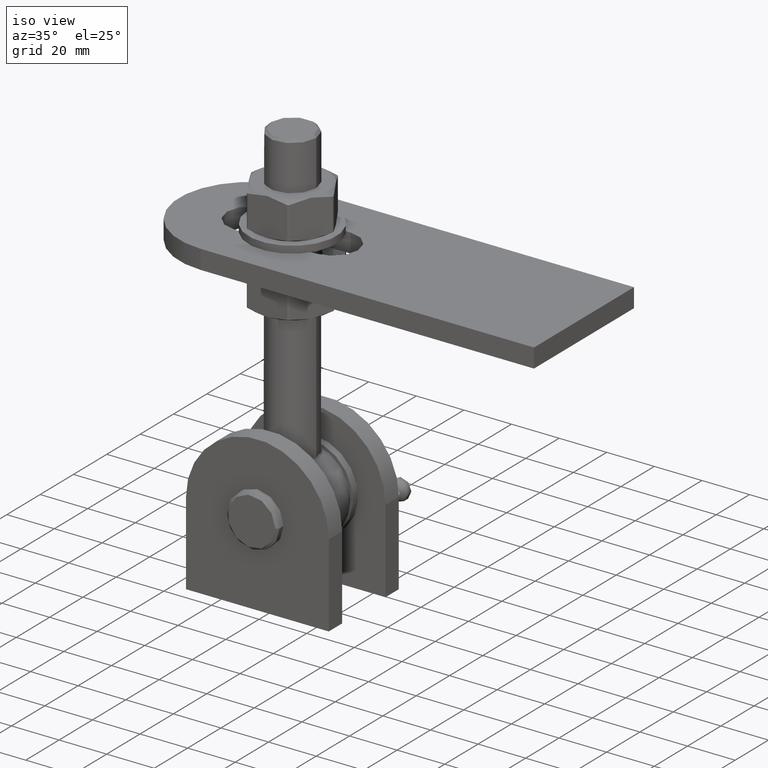
[diagram: clean part render]
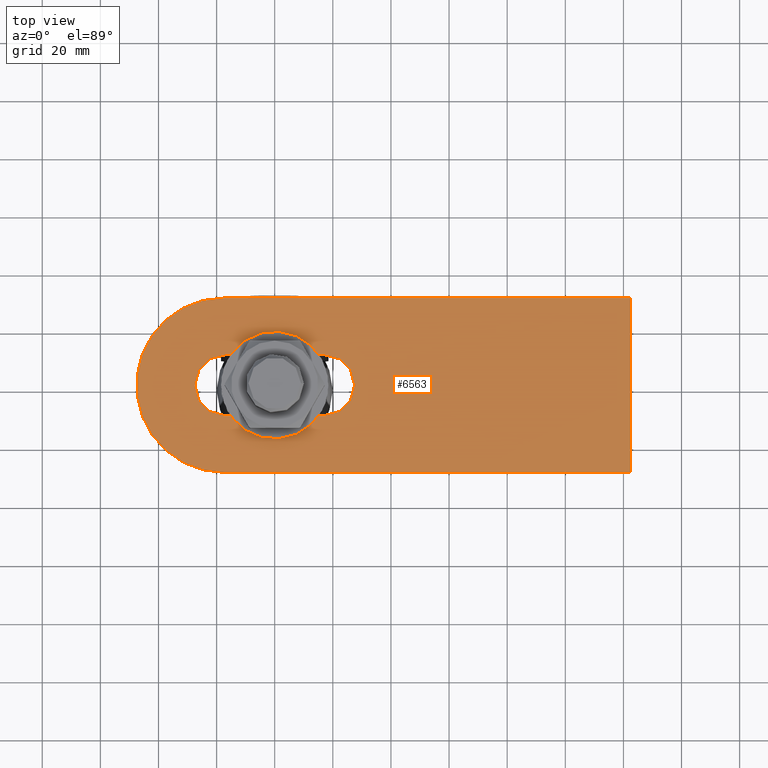
[diagram: tour spotlight — one face highlighted and labeled with its STEP entity id]
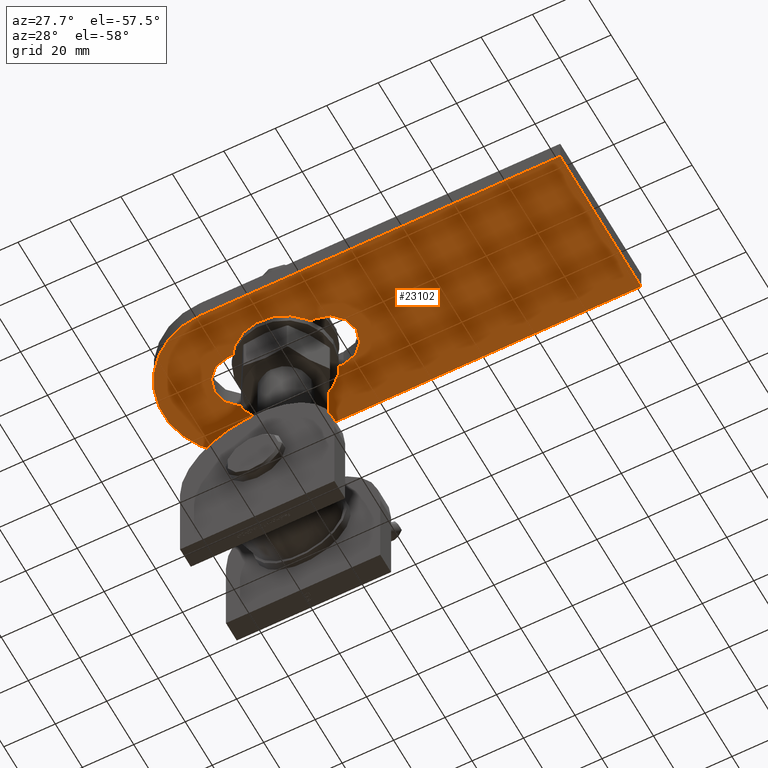
[diagram: tour spotlight — one face highlighted and labeled with its STEP entity id]
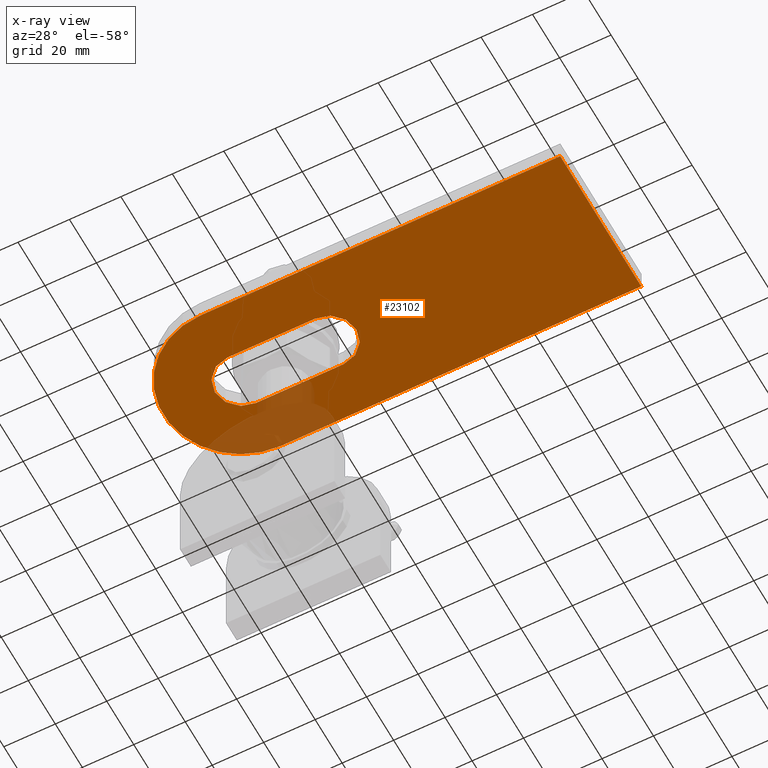
[diagram: x-ray of the same camera — body ghosted, this tour face saturated]
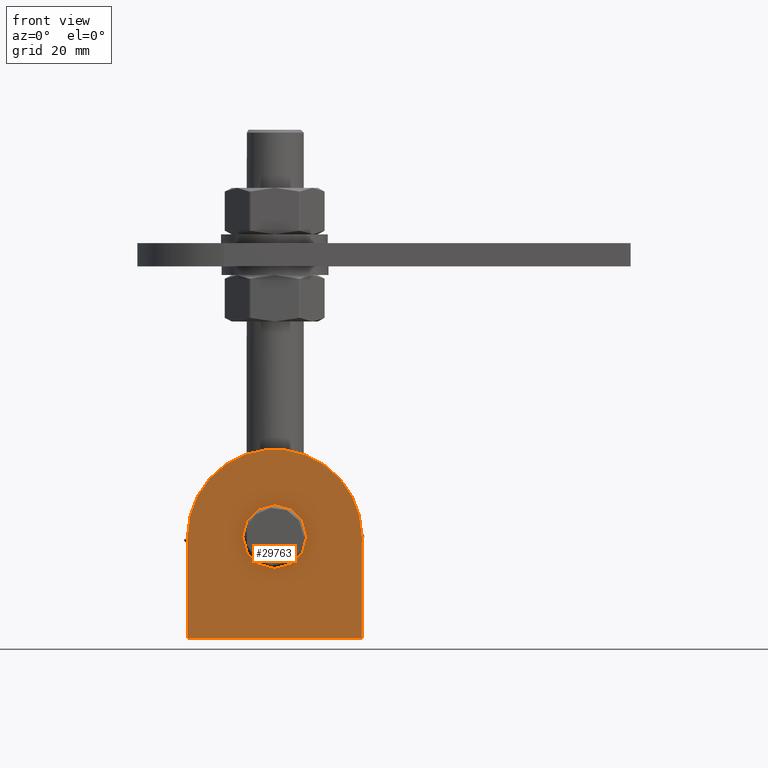
[diagram: tour spotlight — one face highlighted and labeled with its STEP entity id]
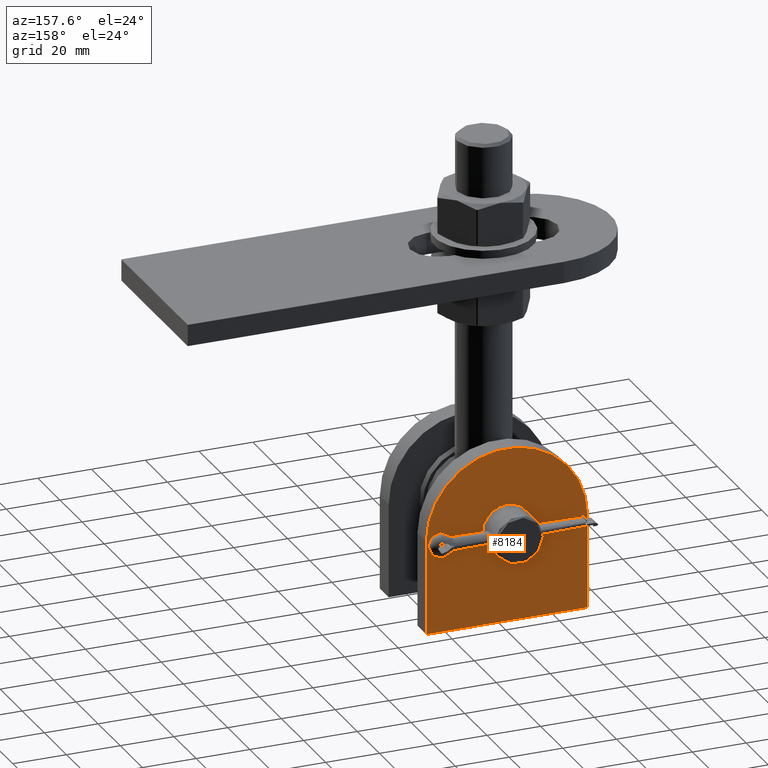
[diagram: tour spotlight — one face highlighted and labeled with its STEP entity id]
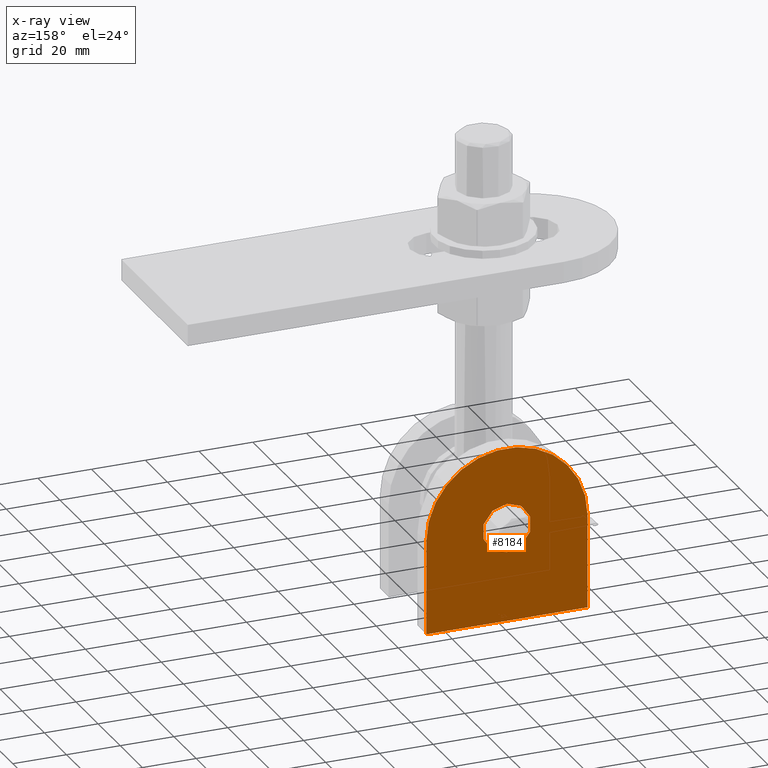
[diagram: x-ray of the same camera — body ghosted, this tour face saturated]
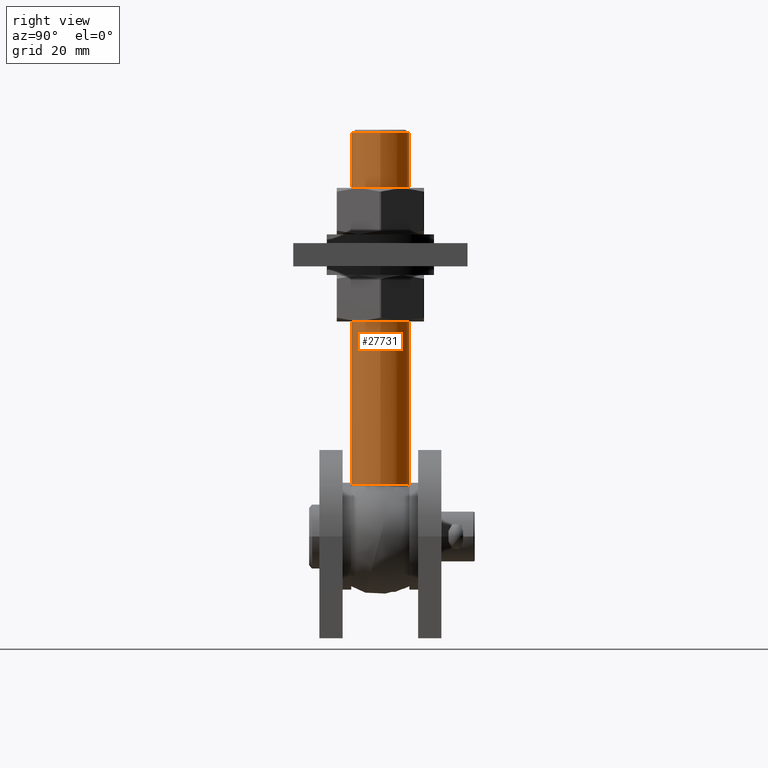
[diagram: tour spotlight — one face highlighted and labeled with its STEP entity id]
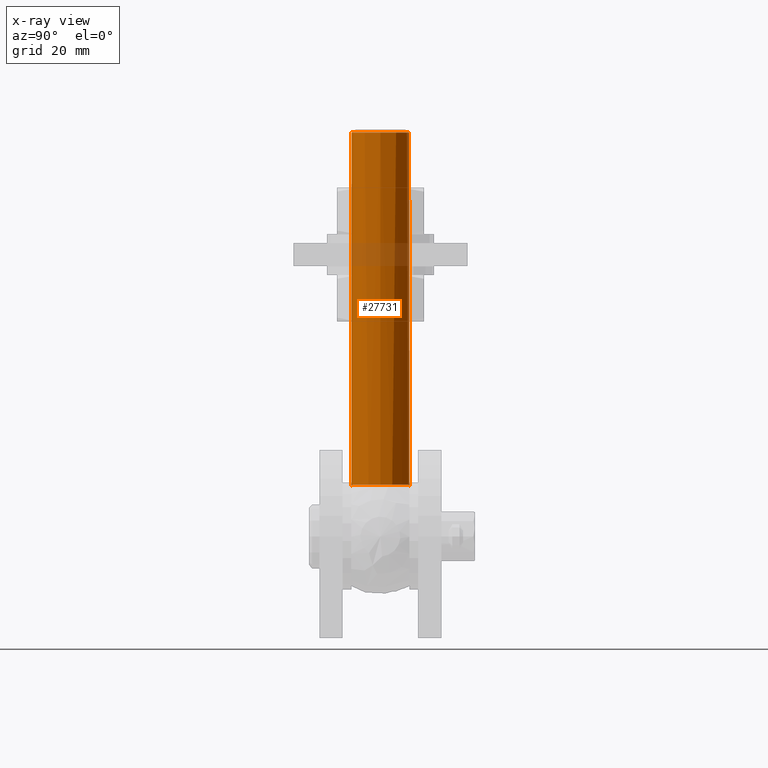
[diagram: x-ray of the same camera — body ghosted, this tour face saturated]
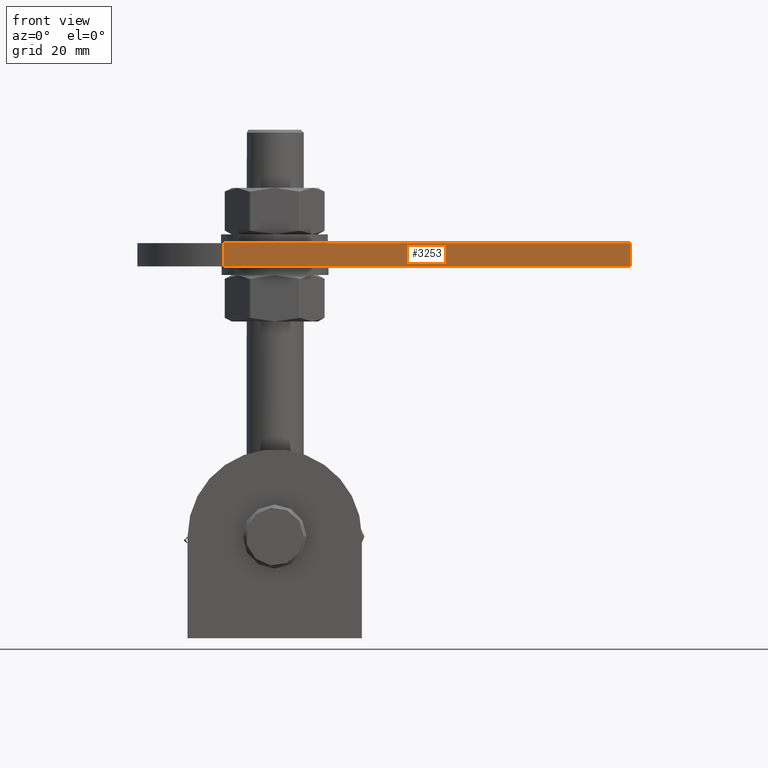
[diagram: tour spotlight — one face highlighted and labeled with its STEP entity id]
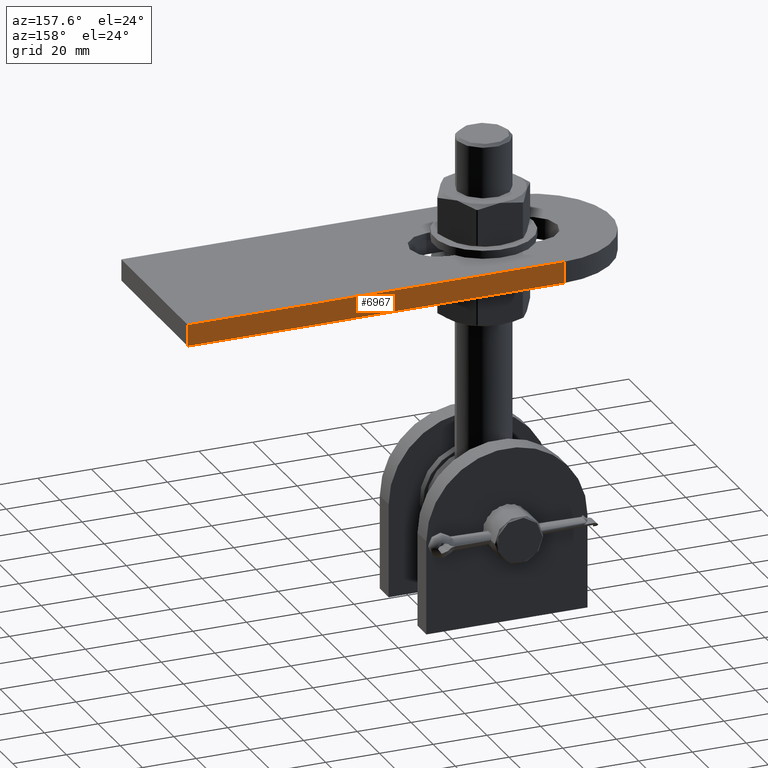
[diagram: tour spotlight — one face highlighted and labeled with its STEP entity id]
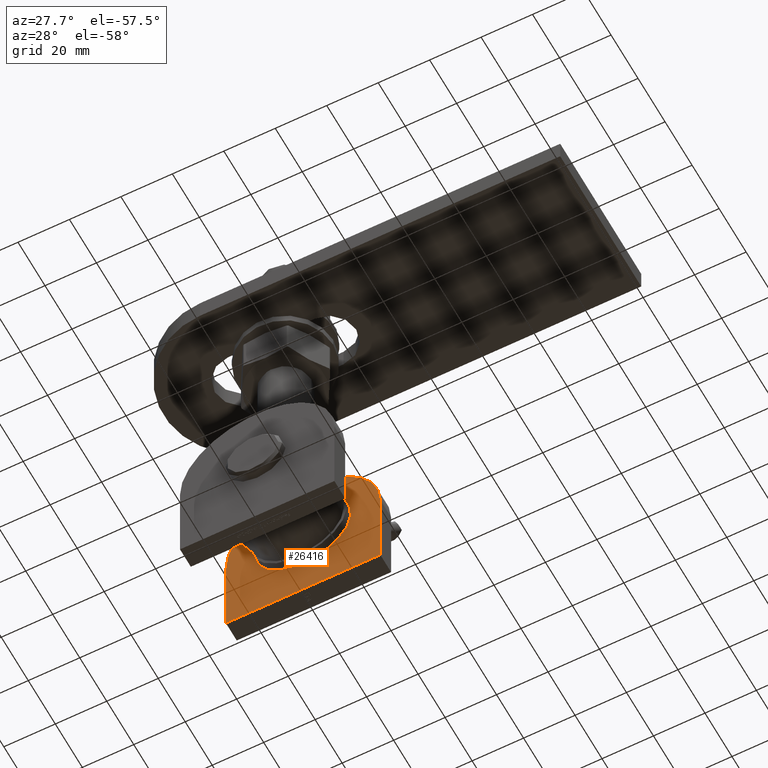
[diagram: tour spotlight — one face highlighted and labeled with its STEP entity id]
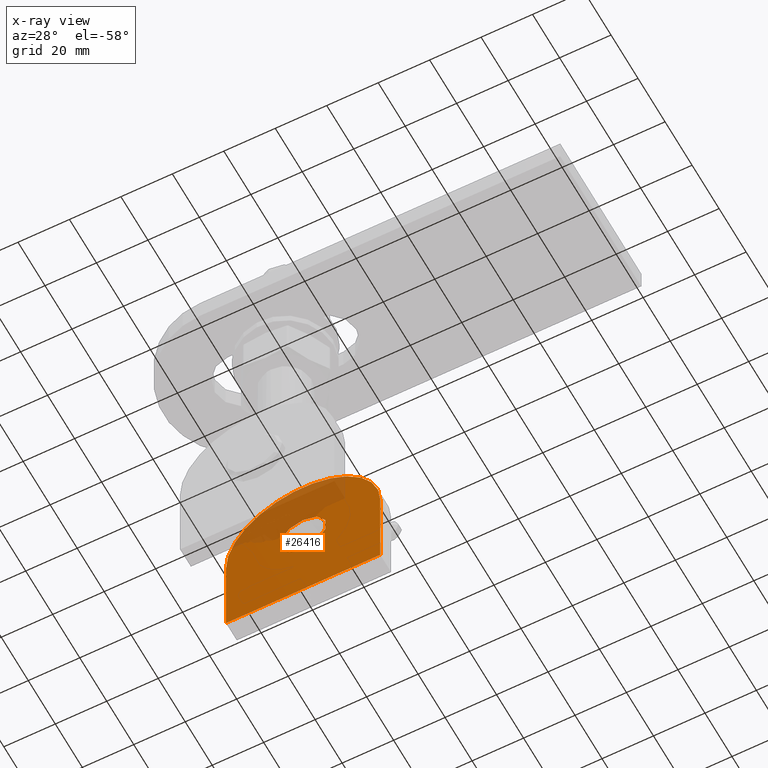
[diagram: x-ray of the same camera — body ghosted, this tour face saturated]
A machine part: a face-by-face anatomy tour. The part has 636 B-rep faces; the first image is the clean iso view, then the 8 largest visible faces are spotlighted one at a time (largest first), each with its STEP entity span.

Face 1 — top view, entity #6563. In plain terms, the highlighted planar face has unit normal (0, 0, -1).
Definition (entity closure, byte-faithful):
#70 = AXIS2_PLACEMENT_3D ( 'NONE', #31340, #31233, #23842 ) ;
#846 = CARTESIAN_POINT ( 'NONE',  ( 85.00000000000000000, 29.99999999999998224, 4.000000000000000000 ) ) ;
#1345 = ORIENTED_EDGE ( 'NONE', *, *, #8504, .F. ) ;
#1895 = CARTESIAN_POINT ( 'NONE',  ( -54.50000000000000000, -10.49999999999999645, 4.000000000000000000 ) ) ;
#2605 = AXIS2_PLACEMENT_3D ( 'NONE', #6193, #23259, #8641 ) ;
#2699 = ORIENTED_EDGE ( 'NONE', *, *, #7090, .T. ) ;
#3069 = VERTEX_POINT ( 'NONE', #25669 ) ;
#3636 = ORIENTED_EDGE ( 'NONE', *, *, #27368, .T. ) ;
#3735 = DIRECTION ( 'NONE',  ( 1.000000000000000000, 0.000000000000000000, 0.000000000000000000 ) ) ;
#4306 = CARTESIAN_POINT ( 'NONE',  ( -55.00000000000000000, 30.00000000000001421, 4.000000000000000000 ) ) ;
#4659 = VERTEX_POINT ( 'NONE', #29516 ) ;
#5283 = LINE ( 'NONE', #15876, #29631 ) ;
#6193 = CARTESIAN_POINT ( 'NONE',  ( -20.50000000000000355, 2.877919977996282687E-15, 4.000000000000000000 ) ) ;
#6280 = DIRECTION ( 'NONE',  ( 1.000000000000000000, 0.000000000000000000, 0.000000000000000000 ) ) ;
#6331 = LINE ( 'NONE', #846, #15124 ) ;
#6563 = ADVANCED_FACE ( 'NONE', ( #16384, #9113 ), #30102, .F. ) ;
#6815 = EDGE_CURVE ( 'NONE', #10677, #12191, #5283, .T. ) ;
#7090 = EDGE_CURVE ( 'NONE', #25351, #4659, #14826, .T. ) ;
#8081 = EDGE_CURVE ( 'NONE', #18296, #21354, #30354, .T. ) ;
#8504 = EDGE_CURVE ( 'NONE', #3069, #18107, #28848, .T. ) ;
#8641 = DIRECTION ( 'NONE',  ( 1.000000000000000000, 0.000000000000000000, 0.000000000000000000 ) ) ;
#9054 = EDGE_CURVE ( 'NONE', #4659, #10677, #6331, .T. ) ;
#9113 = FACE_BOUND ( 'NONE', #10014, .T. ) ;
#9643 = ORIENTED_EDGE ( 'NONE', *, *, #9054, .T. ) ;
#10014 = EDGE_LOOP ( 'NONE', ( #24356, #22598, #1345, #24283 ) ) ;
#10036 = DIRECTION ( 'NONE',  ( -1.000000000000000000, -0.000000000000000000, -0.000000000000000000 ) ) ;
#10677 = VERTEX_POINT ( 'NONE', #11330 ) ;
#11330 = CARTESIAN_POINT ( 'NONE',  ( 85.00000000000000000, 29.99999999999998224, 4.000000000000000000 ) ) ;
#11393 = VECTOR ( 'NONE', #31462, 1000.000000000000000 ) ;
#12191 = VERTEX_POINT ( 'NONE', #4306 ) ;
#12712 = CARTESIAN_POINT ( 'NONE',  ( -54.50000000000000000, 10.50000000000000355, 4.000000000000000000 ) ) ;
#12994 = ORIENTED_EDGE ( 'NONE', *, *, #6815, .T. ) ;
#13238 = CARTESIAN_POINT ( 'NONE',  ( -54.50000000000000000, 2.877919977996282687E-15, 4.000000000000000000 ) ) ;
#14167 = LINE ( 'NONE', #12712, #14537 ) ;
#14537 = VECTOR ( 'NONE', #10036, 1000.000000000000000 ) ;
#14826 = LINE ( 'NONE', #19386, #11393 ) ;
#15124 = VECTOR ( 'NONE', #17923, 1000.000000000000000 ) ;
#15876 = CARTESIAN_POINT ( 'NONE',  ( -54.99999999999999289, 30.00000000000000355, 4.000000000000000000 ) ) ;
#16384 = FACE_OUTER_BOUND ( 'NONE', #18986, .T. ) ;
#17167 = EDGE_CURVE ( 'NONE', #18107, #18296, #14167, .T. ) ;
#17923 = DIRECTION ( 'NONE',  ( -0.000000000000000000, 1.000000000000000000, -0.000000000000000000 ) ) ;
#18107 = VERTEX_POINT ( 'NONE', #19459 ) ;
#18296 = VERTEX_POINT ( 'NONE', #20699 ) ;
#18339 = CARTESIAN_POINT ( 'NONE',  ( -54.50000000000000000, -10.49999999999999645, 4.000000000000000000 ) ) ;
#18986 = EDGE_LOOP ( 'NONE', ( #12994, #3636, #2699, #9643 ) ) ;
#19386 = CARTESIAN_POINT ( 'NONE',  ( 85.00000000000000000, -30.00000000000001421, 4.000000000000000000 ) ) ;
#19459 = CARTESIAN_POINT ( 'NONE',  ( -20.50000000000000355, 10.50000000000000355, 4.000000000000000000 ) ) ;
#20699 = CARTESIAN_POINT ( 'NONE',  ( -54.50000000000000000, 10.50000000000000355, 4.000000000000000000 ) ) ;
#21354 = VERTEX_POINT ( 'NONE', #1895 ) ;
#22598 = ORIENTED_EDGE ( 'NONE', *, *, #17167, .F. ) ;
#22941 = CARTESIAN_POINT ( 'NONE',  ( -54.99999999999998579, -29.99999999999999645, 4.000000000000000000 ) ) ;
#23066 = VECTOR ( 'NONE', #3735, 1000.000000000000000 ) ;
#23259 = DIRECTION ( 'NONE',  ( 0.000000000000000000, 0.000000000000000000, 1.000000000000000000 ) ) ;
#23842 = DIRECTION ( 'NONE',  ( -1.000000000000000000, 0.000000000000000000, 0.000000000000000000 ) ) ;
#24283 = ORIENTED_EDGE ( 'NONE', *, *, #24714, .F. ) ;
#24356 = ORIENTED_EDGE ( 'NONE', *, *, #8081, .F. ) ;
#24714 = EDGE_CURVE ( 'NONE', #21354, #3069, #26084, .T. ) ;
#25351 = VERTEX_POINT ( 'NONE', #22941 ) ;
#25356 = DIRECTION ( 'NONE',  ( -0.000000000000000000, 0.000000000000000000, -1.000000000000000000 ) ) ;
#25453 = CARTESIAN_POINT ( 'NONE',  ( -55.00000000000000000, 1.302750038222445316E-14, 4.000000000000000000 ) ) ;
#25667 = DIRECTION ( 'NONE',  ( -1.000000000000000000, 1.486905836551548832E-16, -0.000000000000000000 ) ) ;
#25669 = CARTESIAN_POINT ( 'NONE',  ( -20.50000000000000711, -10.49999999999999645, 4.000000000000000000 ) ) ;
#26084 = LINE ( 'NONE', #18339, #23066 ) ;
#27167 = CIRCLE ( 'NONE', #70, 29.99999999999999289 ) ;
#27278 = AXIS2_PLACEMENT_3D ( 'NONE', #25453, #25356, #27679 ) ;
#27368 = EDGE_CURVE ( 'NONE', #12191, #25351, #27167, .T. ) ;
#27679 = DIRECTION ( 'NONE',  ( -1.000000000000000000, 0.000000000000000000, 0.000000000000000000 ) ) ;
#27994 = DIRECTION ( 'NONE',  ( 0.000000000000000000, 0.000000000000000000, 1.000000000000000000 ) ) ;
#28848 = CIRCLE ( 'NONE', #2605, 10.50000000000000000 ) ;
#29516 = CARTESIAN_POINT ( 'NONE',  ( 85.00000000000000000, -30.00000000000001421, 4.000000000000000000 ) ) ;
#29631 = VECTOR ( 'NONE', #25667, 1000.000000000000000 ) ;
#30102 = PLANE ( 'NONE',  #27278 ) ;
#30354 = CIRCLE ( 'NONE', #31347, 10.50000000000000178 ) ;
#31233 = DIRECTION ( 'NONE',  ( 0.000000000000000000, 0.000000000000000000, 1.000000000000000000 ) ) ;
#31340 = CARTESIAN_POINT ( 'NONE',  ( -55.00000000000000000, 1.302750038222445316E-14, 4.000000000000000000 ) ) ;
#31347 = AXIS2_PLACEMENT_3D ( 'NONE', #13238, #27994, #6280 ) ;
#31462 = DIRECTION ( 'NONE',  ( 1.000000000000000000, -1.239088197126290817E-16, -0.000000000000000000 ) ) ;

Face 2 — auxiliary view, entity #23102. An x-ray twin of the same camera follows (body ghosted, this face saturated) — the face is partly hidden behind the body. In plain terms, the highlighted planar face has unit normal (0, 0, -1).
Definition (entity closure, byte-faithful):
#570 = DIRECTION ( 'NONE',  ( 1.000000000000000000, 0.000000000000000000, 0.000000000000000000 ) ) ;
#961 = CARTESIAN_POINT ( 'NONE',  ( 85.00000000000000000, -30.00000000000001421, -4.000000000000000000 ) ) ;
#1170 = AXIS2_PLACEMENT_3D ( 'NONE', #13006, #29979, #23017 ) ;
#2500 = VERTEX_POINT ( 'NONE', #961 ) ;
#2531 = EDGE_CURVE ( 'NONE', #2500, #20309, #3528, .T. ) ;
#2714 = DIRECTION ( 'NONE',  ( 0.000000000000000000, 0.000000000000000000, 1.000000000000000000 ) ) ;
#3528 = LINE ( 'NONE', #30251, #28661 ) ;
#3671 = ORIENTED_EDGE ( 'NONE', *, *, #12033, .F. ) ;
#3680 = AXIS2_PLACEMENT_3D ( 'NONE', #19676, #2714, #12551 ) ;
#5418 = VECTOR ( 'NONE', #15050, 1000.000000000000000 ) ;
#5744 = FACE_BOUND ( 'NONE', #19794, .T. ) ;
#6851 = LINE ( 'NONE', #15620, #24412 ) ;
#7400 = DIRECTION ( 'NONE',  ( -0.000000000000000000, 0.000000000000000000, -1.000000000000000000 ) ) ;
#8524 = VERTEX_POINT ( 'NONE', #22477 ) ;
#9342 = EDGE_CURVE ( 'NONE', #20671, #20636, #28807, .T. ) ;
#9930 = DIRECTION ( 'NONE',  ( -1.000000000000000000, 0.000000000000000000, 0.000000000000000000 ) ) ;
#9976 = VERTEX_POINT ( 'NONE', #10546 ) ;
#10464 = LINE ( 'NONE', #10604, #16190 ) ;
#10546 = CARTESIAN_POINT ( 'NONE',  ( -54.50000000000000000, 10.50000000000000355, -4.000000000000000000 ) ) ;
#10604 = CARTESIAN_POINT ( 'NONE',  ( 85.00000000000000000, -30.00000000000001421, -4.000000000000000000 ) ) ;
#11274 = VERTEX_POINT ( 'NONE', #15642 ) ;
#11339 = EDGE_CURVE ( 'NONE', #9976, #8524, #25314, .T. ) ;
#11863 = ORIENTED_EDGE ( 'NONE', *, *, #9342, .F. ) ;
#12033 = EDGE_CURVE ( 'NONE', #20636, #2500, #10464, .T. ) ;
#12045 = CARTESIAN_POINT ( 'NONE',  ( -55.00000000000000000, 30.00000000000001421, -4.000000000000000000 ) ) ;
#12321 = CARTESIAN_POINT ( 'NONE',  ( -55.00000000000000000, 1.302750038222445316E-14, -4.000000000000000000 ) ) ;
#12551 = DIRECTION ( 'NONE',  ( 1.000000000000000000, 0.000000000000000000, 0.000000000000000000 ) ) ;
#12767 = DIRECTION ( 'NONE',  ( 1.000000000000000000, -1.239088197126290817E-16, -0.000000000000000000 ) ) ;
#13006 = CARTESIAN_POINT ( 'NONE',  ( -55.00000000000000000, 1.302750038222445316E-14, -4.000000000000000000 ) ) ;
#13050 = FACE_OUTER_BOUND ( 'NONE', #28681, .T. ) ;
#13519 = ORIENTED_EDGE ( 'NONE', *, *, #11339, .T. ) ;
#13601 = CIRCLE ( 'NONE', #25234, 10.50000000000000000 ) ;
#13826 = LINE ( 'NONE', #17154, #15325 ) ;
#14208 = EDGE_CURVE ( 'NONE', #11274, #9976, #13826, .T. ) ;
#15050 = DIRECTION ( 'NONE',  ( 1.000000000000000000, 0.000000000000000000, 0.000000000000000000 ) ) ;
#15189 = CARTESIAN_POINT ( 'NONE',  ( -20.50000000000000355, 2.877919977996282687E-15, -4.000000000000000000 ) ) ;
#15325 = VECTOR ( 'NONE', #19691, 1000.000000000000000 ) ;
#15605 = DIRECTION ( 'NONE',  ( 0.000000000000000000, 0.000000000000000000, 1.000000000000000000 ) ) ;
#15620 = CARTESIAN_POINT ( 'NONE',  ( -54.99999999999999289, 30.00000000000000355, -4.000000000000000000 ) ) ;
#15642 = CARTESIAN_POINT ( 'NONE',  ( -20.50000000000000355, 10.50000000000000355, -4.000000000000000000 ) ) ;
#16190 = VECTOR ( 'NONE', #12767, 1000.000000000000000 ) ;
#16871 = CARTESIAN_POINT ( 'NONE',  ( 85.00000000000000000, 29.99999999999998224, -4.000000000000000000 ) ) ;
#17154 = CARTESIAN_POINT ( 'NONE',  ( -54.50000000000000000, 10.50000000000000355, -4.000000000000000000 ) ) ;
#17811 = EDGE_CURVE ( 'NONE', #20309, #20671, #6851, .T. ) ;
#18501 = ORIENTED_EDGE ( 'NONE', *, *, #17811, .F. ) ;
#19676 = CARTESIAN_POINT ( 'NONE',  ( -54.50000000000000000, 2.877919977996282687E-15, -4.000000000000000000 ) ) ;
#19691 = DIRECTION ( 'NONE',  ( -1.000000000000000000, -0.000000000000000000, -0.000000000000000000 ) ) ;
#19794 = EDGE_LOOP ( 'NONE', ( #19851, #13519, #30669, #22235 ) ) ;
#19851 = ORIENTED_EDGE ( 'NONE', *, *, #14208, .T. ) ;
#20201 = DIRECTION ( 'NONE',  ( -1.000000000000000000, 1.486905836551548832E-16, -0.000000000000000000 ) ) ;
#20309 = VERTEX_POINT ( 'NONE', #16871 ) ;
#20426 = VERTEX_POINT ( 'NONE', #26747 ) ;
#20636 = VERTEX_POINT ( 'NONE', #28174 ) ;
#20671 = VERTEX_POINT ( 'NONE', #12045 ) ;
#22011 = PLANE ( 'NONE',  #26456 ) ;
#22235 = ORIENTED_EDGE ( 'NONE', *, *, #23973, .T. ) ;
#22477 = CARTESIAN_POINT ( 'NONE',  ( -54.50000000000000000, -10.49999999999999645, -4.000000000000000000 ) ) ;
#23017 = DIRECTION ( 'NONE',  ( -1.000000000000000000, 0.000000000000000000, 0.000000000000000000 ) ) ;
#23102 = ADVANCED_FACE ( 'NONE', ( #13050, #5744 ), #22011, .T. ) ;
#23235 = EDGE_CURVE ( 'NONE', #8524, #20426, #30199, .T. ) ;
#23973 = EDGE_CURVE ( 'NONE', #20426, #11274, #13601, .T. ) ;
#24412 = VECTOR ( 'NONE', #20201, 1000.000000000000000 ) ;
#25234 = AXIS2_PLACEMENT_3D ( 'NONE', #15189, #15605, #570 ) ;
#25314 = CIRCLE ( 'NONE', #3680, 10.50000000000000178 ) ;
#26456 = AXIS2_PLACEMENT_3D ( 'NONE', #12321, #7400, #9930 ) ;
#26747 = CARTESIAN_POINT ( 'NONE',  ( -20.50000000000000711, -10.49999999999999645, -4.000000000000000000 ) ) ;
#27180 = CARTESIAN_POINT ( 'NONE',  ( -54.50000000000000000, -10.49999999999999645, -4.000000000000000000 ) ) ;
#28174 = CARTESIAN_POINT ( 'NONE',  ( -54.99999999999998579, -29.99999999999999645, -4.000000000000000000 ) ) ;
#28661 = VECTOR ( 'NONE', #30558, 1000.000000000000000 ) ;
#28681 = EDGE_LOOP ( 'NONE', ( #18501, #31063, #3671, #11863 ) ) ;
#28807 = CIRCLE ( 'NONE', #1170, 29.99999999999999289 ) ;
#29979 = DIRECTION ( 'NONE',  ( 0.000000000000000000, 0.000000000000000000, 1.000000000000000000 ) ) ;
#30199 = LINE ( 'NONE', #27180, #5418 ) ;
#30251 = CARTESIAN_POINT ( 'NONE',  ( 85.00000000000000000, 29.99999999999998224, -4.000000000000000000 ) ) ;
#30558 = DIRECTION ( 'NONE',  ( -0.000000000000000000, 1.000000000000000000, -0.000000000000000000 ) ) ;
#30669 = ORIENTED_EDGE ( 'NONE', *, *, #23235, .T. ) ;
#31063 = ORIENTED_EDGE ( 'NONE', *, *, #2531, .F. ) ;

Face 3 — front view, entity #29763. In plain terms, the highlighted planar face has unit normal (0, -1, 0).
Definition (entity closure, byte-faithful):
#530 = EDGE_LOOP ( 'NONE', ( #7365, #26316, #23164, #26715 ) ) ;
#829 = CARTESIAN_POINT ( 'NONE',  ( 30.00000000000000355, -4.000000000000003553, 2.499999999999988010 ) ) ;
#940 = PLANE ( 'NONE',  #22772 ) ;
#1738 = ORIENTED_EDGE ( 'NONE', *, *, #24646, .T. ) ;
#2504 = AXIS2_PLACEMENT_3D ( 'NONE', #8419, #20371, #25139 ) ;
#3199 = CARTESIAN_POINT ( 'NONE',  ( 6.938893903907228378E-15, -4.000000000000003553, 2.499999999999995115 ) ) ;
#3675 = CARTESIAN_POINT ( 'NONE',  ( 3.469446951953614189E-15, -4.000000000000003553, 11.60000000000000320 ) ) ;
#4035 = CIRCLE ( 'NONE', #6247, 30.00000000000000000 ) ;
#4401 = EDGE_CURVE ( 'NONE', #19968, #26686, #24039, .T. ) ;
#6118 = VECTOR ( 'NONE', #23597, 1000.000000000000000 ) ;
#6198 = CARTESIAN_POINT ( 'NONE',  ( 30.00000000000000000, -4.000000000000003553, -32.50000000000001421 ) ) ;
#6247 = AXIS2_PLACEMENT_3D ( 'NONE', #11312, #11627, #21538 ) ;
#7365 = ORIENTED_EDGE ( 'NONE', *, *, #4401, .F. ) ;
#8419 = CARTESIAN_POINT ( 'NONE',  ( 3.469446951953614189E-15, -4.000000000000003553, 2.500000000000002220 ) ) ;
#10678 = DIRECTION ( 'NONE',  ( 0.000000000000000000, -1.000000000000000000, 0.000000000000000000 ) ) ;
#10801 = DIRECTION ( 'NONE',  ( -9.912705577010326782E-17, -0.000000000000000000, -1.000000000000000000 ) ) ;
#11117 = CARTESIAN_POINT ( 'NONE',  ( -29.99999999999999289, -4.000000000000003553, 2.500000000000000888 ) ) ;
#11312 = CARTESIAN_POINT ( 'NONE',  ( 6.938893903907228378E-15, -4.000000000000003553, 2.499999999999995115 ) ) ;
#11627 = DIRECTION ( 'NONE',  ( 0.000000000000000000, 1.000000000000000000, -0.000000000000000000 ) ) ;
#12652 = EDGE_LOOP ( 'NONE', ( #1738 ) ) ;
#14195 = LINE ( 'NONE', #20730, #30883 ) ;
#14402 = VERTEX_POINT ( 'NONE', #22872 ) ;
#14609 = EDGE_CURVE ( 'NONE', #14402, #19968, #14195, .T. ) ;
#16204 = CIRCLE ( 'NONE', #2504, 9.099999999999999645 ) ;
#18667 = EDGE_CURVE ( 'NONE', #22670, #14402, #25496, .T. ) ;
#19968 = VERTEX_POINT ( 'NONE', #27101 ) ;
#20371 = DIRECTION ( 'NONE',  ( 0.000000000000000000, 1.000000000000000000, 0.000000000000000000 ) ) ;
#20377 = DIRECTION ( 'NONE',  ( 0.000000000000000000, -0.000000000000000000, -1.000000000000000000 ) ) ;
#20730 = CARTESIAN_POINT ( 'NONE',  ( -30.00000000000000000, -4.000000000000003553, -32.50000000000000000 ) ) ;
#21538 = DIRECTION ( 'NONE',  ( 0.000000000000000000, 0.000000000000000000, -1.000000000000000000 ) ) ;
#21757 = FACE_OUTER_BOUND ( 'NONE', #530, .T. ) ;
#22670 = VERTEX_POINT ( 'NONE', #829 ) ;
#22772 = AXIS2_PLACEMENT_3D ( 'NONE', #3199, #10678, #20377 ) ;
#22822 = EDGE_CURVE ( 'NONE', #26686, #22670, #4035, .T. ) ;
#22872 = CARTESIAN_POINT ( 'NONE',  ( 30.00000000000000000, -4.000000000000003553, -32.50000000000001421 ) ) ;
#23164 = ORIENTED_EDGE ( 'NONE', *, *, #18667, .F. ) ;
#23597 = DIRECTION ( 'NONE',  ( 9.912705577010326782E-17, -0.000000000000000000, 1.000000000000000000 ) ) ;
#23612 = VECTOR ( 'NONE', #10801, 1000.000000000000000 ) ;
#24039 = LINE ( 'NONE', #28143, #6118 ) ;
#24646 = EDGE_CURVE ( 'NONE', #31554, #31554, #16204, .T. ) ;
#25139 = DIRECTION ( 'NONE',  ( 0.000000000000000000, 0.000000000000000000, 1.000000000000000000 ) ) ;
#25496 = LINE ( 'NONE', #6198, #23612 ) ;
#26316 = ORIENTED_EDGE ( 'NONE', *, *, #14609, .F. ) ;
#26686 = VERTEX_POINT ( 'NONE', #11117 ) ;
#26715 = ORIENTED_EDGE ( 'NONE', *, *, #22822, .F. ) ;
#27101 = CARTESIAN_POINT ( 'NONE',  ( -30.00000000000000000, -4.000000000000003553, -32.50000000000000000 ) ) ;
#28143 = CARTESIAN_POINT ( 'NONE',  ( -29.99999999999999645, -4.000000000000003553, 2.499999999999995115 ) ) ;
#28939 = FACE_BOUND ( 'NONE', #12652, .T. ) ;
#29763 = ADVANCED_FACE ( 'NONE', ( #21757, #28939 ), #940, .T. ) ;
#30466 = DIRECTION ( 'NONE',  ( -1.000000000000000000, -0.000000000000000000, 1.156482317317871478E-16 ) ) ;
#30883 = VECTOR ( 'NONE', #30466, 1000.000000000000000 ) ;
#31554 = VERTEX_POINT ( 'NONE', #3675 ) ;

Face 4 — auxiliary view, entity #8184. An x-ray twin of the same camera follows (body ghosted, this face saturated) — the face is partly hidden behind the body. In plain terms, the highlighted planar face has unit normal (0, -1, 0).
Definition (entity closure, byte-faithful):
#1274 = CARTESIAN_POINT ( 'NONE',  ( -29.99999999999999289, 4.000000000000003553, 2.500000000000000888 ) ) ;
#1417 = ORIENTED_EDGE ( 'NONE', *, *, #20295, .T. ) ;
#1537 = LINE ( 'NONE', #1772, #13401 ) ;
#1589 = AXIS2_PLACEMENT_3D ( 'NONE', #17762, #22995, #8363 ) ;
#1772 = CARTESIAN_POINT ( 'NONE',  ( 30.00000000000000000, 4.000000000000003553, -32.50000000000000711 ) ) ;
#2108 = DIRECTION ( 'NONE',  ( 9.912705577010326782E-17, -0.000000000000000000, 1.000000000000000000 ) ) ;
#2582 = CARTESIAN_POINT ( 'NONE',  ( 30.00000000000000355, 4.000000000000003553, 2.499999999999988010 ) ) ;
#2624 = VERTEX_POINT ( 'NONE', #8155 ) ;
#3297 = FACE_OUTER_BOUND ( 'NONE', #8366, .T. ) ;
#3728 = PLANE ( 'NONE',  #23245 ) ;
#3827 = DIRECTION ( 'NONE',  ( 0.000000000000000000, -0.000000000000000000, -1.000000000000000000 ) ) ;
#4262 = EDGE_CURVE ( 'NONE', #22525, #24776, #1537, .T. ) ;
#6390 = VECTOR ( 'NONE', #26114, 1000.000000000000000 ) ;
#7003 = VERTEX_POINT ( 'NONE', #28643 ) ;
#8155 = CARTESIAN_POINT ( 'NONE',  ( 3.469446951953614189E-15, 4.000000000000003553, 11.60000000000000320 ) ) ;
#8184 = ADVANCED_FACE ( 'NONE', ( #3297, #27336 ), #3728, .F. ) ;
#8363 = DIRECTION ( 'NONE',  ( 0.000000000000000000, 0.000000000000000000, 1.000000000000000000 ) ) ;
#8366 = EDGE_LOOP ( 'NONE', ( #26756, #28546, #24372, #1417 ) ) ;
#10961 = DIRECTION ( 'NONE',  ( 0.000000000000000000, 1.000000000000000000, -0.000000000000000000 ) ) ;
#10995 = LINE ( 'NONE', #28537, #6390 ) ;
#11235 = CIRCLE ( 'NONE', #1589, 9.099999999999999645 ) ;
#11405 = CARTESIAN_POINT ( 'NONE',  ( 30.00000000000000000, 4.000000000000003553, -32.50000000000000711 ) ) ;
#11574 = EDGE_CURVE ( 'NONE', #2624, #2624, #11235, .T. ) ;
#12722 = VECTOR ( 'NONE', #2108, 1000.000000000000000 ) ;
#12816 = EDGE_CURVE ( 'NONE', #7003, #18692, #14624, .T. ) ;
#13401 = VECTOR ( 'NONE', #16636, 1000.000000000000000 ) ;
#14300 = CARTESIAN_POINT ( 'NONE',  ( -29.99999999999999645, 4.000000000000003553, 2.499999999999995115 ) ) ;
#14624 = LINE ( 'NONE', #14300, #12722 ) ;
#16636 = DIRECTION ( 'NONE',  ( -9.912705577010326782E-17, -0.000000000000000000, -1.000000000000000000 ) ) ;
#17762 = CARTESIAN_POINT ( 'NONE',  ( 3.469446951953614189E-15, 4.000000000000003553, 2.500000000000002220 ) ) ;
#18692 = VERTEX_POINT ( 'NONE', #1274 ) ;
#20295 = EDGE_CURVE ( 'NONE', #24776, #7003, #10995, .T. ) ;
#20602 = CIRCLE ( 'NONE', #21755, 30.00000000000000000 ) ;
#20790 = CARTESIAN_POINT ( 'NONE',  ( 6.938893903907228378E-15, 4.000000000000003553, 2.499999999999995115 ) ) ;
#21015 = EDGE_LOOP ( 'NONE', ( #30611 ) ) ;
#21755 = AXIS2_PLACEMENT_3D ( 'NONE', #23215, #10961, #27968 ) ;
#22525 = VERTEX_POINT ( 'NONE', #2582 ) ;
#22995 = DIRECTION ( 'NONE',  ( 0.000000000000000000, 1.000000000000000000, 0.000000000000000000 ) ) ;
#23215 = CARTESIAN_POINT ( 'NONE',  ( 6.938893903907228378E-15, 4.000000000000003553, 2.499999999999995115 ) ) ;
#23237 = DIRECTION ( 'NONE',  ( 0.000000000000000000, -1.000000000000000000, 0.000000000000000000 ) ) ;
#23245 = AXIS2_PLACEMENT_3D ( 'NONE', #20790, #23237, #3827 ) ;
#24372 = ORIENTED_EDGE ( 'NONE', *, *, #4262, .T. ) ;
#24776 = VERTEX_POINT ( 'NONE', #11405 ) ;
#26114 = DIRECTION ( 'NONE',  ( -1.000000000000000000, -0.000000000000000000, 1.156482317317871478E-16 ) ) ;
#26756 = ORIENTED_EDGE ( 'NONE', *, *, #12816, .T. ) ;
#27336 = FACE_BOUND ( 'NONE', #21015, .T. ) ;
#27968 = DIRECTION ( 'NONE',  ( 0.000000000000000000, 0.000000000000000000, -1.000000000000000000 ) ) ;
#28537 = CARTESIAN_POINT ( 'NONE',  ( -30.00000000000000000, 4.000000000000003553, -32.50000000000000000 ) ) ;
#28546 = ORIENTED_EDGE ( 'NONE', *, *, #29938, .T. ) ;
#28643 = CARTESIAN_POINT ( 'NONE',  ( -30.00000000000000000, 4.000000000000003553, -32.50000000000000000 ) ) ;
#29938 = EDGE_CURVE ( 'NONE', #18692, #22525, #20602, .T. ) ;
#30611 = ORIENTED_EDGE ( 'NONE', *, *, #11574, .F. ) ;

Face 5 — right view, entity #27731. An x-ray twin of the same camera follows (body ghosted, this face saturated) — the face is partly hidden behind the body. In plain terms, the highlighted cylindrical surface (bore or boss wall) has radius 10 mm, axis along (0, 0, 1).
Definition (entity closure, byte-faithful):
#57 = CARTESIAN_POINT ( 'NONE',  ( 1.985707143202078084, -9.804211710478377029, 17.81571032337832960 ) ) ;
#272 = DIRECTION ( 'NONE',  ( 0.000000000000000000, 0.000000000000000000, 1.000000000000000000 ) ) ;
#313 = VERTEX_POINT ( 'NONE', #15637 ) ;
#445 = DIRECTION ( 'NONE',  ( -1.000000000000000000, 0.000000000000000000, 0.000000000000000000 ) ) ;
#741 = CARTESIAN_POINT ( 'NONE',  ( 0.000000000000000000, 0.000000000000000000, 17.88854381999831844 ) ) ;
#1117 = CARTESIAN_POINT ( 'NONE',  ( -2.733362220199925030, -9.622673584589971796, 17.88854381999831844 ) ) ;
#2290 = CARTESIAN_POINT ( 'NONE',  ( 0.4914171525699689846, -9.990994004977260090, 17.47721078271498030 ) ) ;
#2459 = CARTESIAN_POINT ( 'NONE',  ( 2.485003926671049523, 9.689703473299017489, 17.87257680143934735 ) ) ;
#2726 = DIRECTION ( 'NONE',  ( 1.000000000000000000, 0.000000000000000000, 0.000000000000000000 ) ) ;
#2735 = AXIS2_PLACEMENT_3D ( 'NONE', #7640, #272, #2726 ) ;
#2773 = ORIENTED_EDGE ( 'NONE', *, *, #15647, .T. ) ;
#2909 = DIRECTION ( 'NONE',  ( -0.000000000000000000, -0.000000000000000000, 1.000000000000000000 ) ) ;
#3035 = CIRCLE ( 'NONE', #9844, 10.00000000000000000 ) ;
#3239 = CARTESIAN_POINT ( 'NONE',  ( -0.9858532118705795044, 9.954373183178132578, 17.61279226955262800 ) ) ;
#3516 = B_SPLINE_CURVE_WITH_KNOTS ( 'NONE', 3,
 ( #4869, #14991, #2290, #19784, #19369, #24569, #57, #21833, #9983, #7638 ),
 .UNSPECIFIED., .F., .F.,
 ( 4, 2, 2, 2, 4 ),
 ( -2.000179579420329411E-05, 0.0007507720612821907214, 0.001521545918358584723, 0.002292319775434978509, 0.003063093632511372510 ),
 .UNSPECIFIED. ) ;
#4374 = EDGE_LOOP ( 'NONE', ( #19995, #19161, #11775, #27669, #30338, #2773 ) ) ;
#4865 = B_SPLINE_CURVE_WITH_KNOTS ( 'NONE', 3,
 ( #5521, #1117, #27156, #24901, #13326, #5317, #10318, #7781 ),
 .UNSPECIFIED., .F., .F.,
 ( 4, 2, 2, 4 ),
 ( 0.000000000000000000, 0.0007727789668960388268, 0.001545557933792077654, 0.003091115867584157476 ),
 .UNSPECIFIED. ) ;
#4869 = CARTESIAN_POINT ( 'NONE',  ( 0.000000000000000000, -10.00000000000000178, 17.32050807568877460 ) ) ;
#4927 = B_SPLINE_CURVE_WITH_KNOTS ( 'NONE', 3,
 ( #12087, #12509, #2459, #17192, #24310, #26856, #21999, #29067 ),
 .UNSPECIFIED., .F., .F.,
 ( 4, 2, 2, 4 ),
 ( 0.000000000000000000, 0.0007727789668960806770, 0.001545557933792161354, 0.003091115867584322708 ),
 .UNSPECIFIED. ) ;
#5317 = CARTESIAN_POINT ( 'NONE',  ( -0.9843479773292789226, -9.964253606419653408, 17.62232745540006817 ) ) ;
#5521 = CARTESIAN_POINT ( 'NONE',  ( -2.980653874682710480, -9.545454545454552076, 17.88854381999831844 ) ) ;
#5535 = DIRECTION ( 'NONE',  ( 0.000000000000000000, 0.000000000000000000, -1.000000000000000000 ) ) ;
#5793 = FACE_OUTER_BOUND ( 'NONE', #4374, .T. ) ;
#5923 = CARTESIAN_POINT ( 'NONE',  ( -2.980653874682732241, 9.545454545454544970, 17.88854381999831844 ) ) ;
#6554 = VERTEX_POINT ( 'NONE', #10562 ) ;
#7100 = B_SPLINE_CURVE_WITH_KNOTS ( 'NONE', 3,
 ( #15412, #29952, #25406, #3239, #30165, #27833, #20308, #29846, #10401, #5923 ),
 .UNSPECIFIED., .F., .F.,
 ( 4, 2, 2, 2, 4 ),
 ( -2.000179579423795809E-05, 0.0007507720612821217662, 0.001521545918358481290, 0.002292319775434841032, 0.003063093632511199906 ),
 .UNSPECIFIED. ) ;
#7104 = DIRECTION ( 'NONE',  ( -0.000000000000000000, -0.000000000000000000, 1.000000000000000000 ) ) ;
#7296 = VERTEX_POINT ( 'NONE', #9247 ) ;
#7609 = CIRCLE ( 'NONE', #14810, 10.00000000000000000 ) ;
#7638 = CARTESIAN_POINT ( 'NONE',  ( 2.980653874682707372, -9.545454545454552076, 17.88854381999831844 ) ) ;
#7640 = CARTESIAN_POINT ( 'NONE',  ( 0.000000000000000000, 0.000000000000000000, -20.00199999999999179 ) ) ;
#7781 = CARTESIAN_POINT ( 'NONE',  ( 0.000000000000000000, -10.00000000000000178, 17.32050807568877460 ) ) ;
#7893 = CARTESIAN_POINT ( 'NONE',  ( 0.000000000000000000, 0.000000000000000000, 139.0000000000000284 ) ) ;
#8546 = EDGE_CURVE ( 'NONE', #7296, #6554, #4865, .T. ) ;
#9247 = CARTESIAN_POINT ( 'NONE',  ( -2.980653874682710480, -9.545454545454552076, 17.88854381999831844 ) ) ;
#9844 = AXIS2_PLACEMENT_3D ( 'NONE', #21715, #7104, #29011 ) ;
#9983 = CARTESIAN_POINT ( 'NONE',  ( 2.733358030325105048, -9.622674892915995315, 17.88854381999831844 ) ) ;
#10318 = CARTESIAN_POINT ( 'NONE',  ( -0.4890901127443413876, -9.999999999999996447, 17.48239590444727298 ) ) ;
#10330 = DIRECTION ( 'NONE',  ( 1.000000000000000000, 0.000000000000000000, 0.000000000000000000 ) ) ;
#10401 = CARTESIAN_POINT ( 'NONE',  ( -2.733358030325125032, 9.622674892915988210, 17.88854381999831489 ) ) ;
#10562 = CARTESIAN_POINT ( 'NONE',  ( 0.000000000000000000, -10.00000000000000178, 17.32050807568877460 ) ) ;
#11775 = ORIENTED_EDGE ( 'NONE', *, *, #18500, .T. ) ;
#12087 = CARTESIAN_POINT ( 'NONE',  ( 2.980653874682729576, 9.545454545454544970, 17.88854381999831844 ) ) ;
#12437 = CARTESIAN_POINT ( 'NONE',  ( -2.980653874682732241, 9.545454545454544970, 17.88854381999831844 ) ) ;
#12509 = CARTESIAN_POINT ( 'NONE',  ( 2.733362220199940129, 9.622673584589962914, 17.88854381999831844 ) ) ;
#12584 = AXIS2_PLACEMENT_3D ( 'NONE', #7893, #5535, #10330 ) ;
#13326 = CARTESIAN_POINT ( 'NONE',  ( -1.733850697829599996, -9.851780776895902036, 17.77451671852956849 ) ) ;
#13393 = CARTESIAN_POINT ( 'NONE',  ( 10.00000000000000000, 0.000000000000000000, 139.0000000000000284 ) ) ;
#14810 = AXIS2_PLACEMENT_3D ( 'NONE', #741, #2909, #445 ) ;
#14905 = VERTEX_POINT ( 'NONE', #12437 ) ;
#14991 = CARTESIAN_POINT ( 'NONE',  ( 0.2439105415692963685, -9.999999999999998224, 17.40124196696359604 ) ) ;
#15412 = CARTESIAN_POINT ( 'NONE',  ( 0.000000000000000000, 9.999999999999996447, 17.32050807568877815 ) ) ;
#15637 = CARTESIAN_POINT ( 'NONE',  ( 2.980653874682707372, -9.545454545454552076, 17.88854381999831844 ) ) ;
#15647 = EDGE_CURVE ( 'NONE', #313, #19393, #3035, .T. ) ;
#17192 = CARTESIAN_POINT ( 'NONE',  ( 1.985724105054547328, 9.804208162551367067, 17.81571267749883347 ) ) ;
#18500 = EDGE_CURVE ( 'NONE', #14905, #7296, #7609, .T. ) ;
#19161 = ORIENTED_EDGE ( 'NONE', *, *, #29107, .T. ) ;
#19164 = CARTESIAN_POINT ( 'NONE',  ( 2.980653874682729576, 9.545454545454544970, 17.88854381999831844 ) ) ;
#19369 = CARTESIAN_POINT ( 'NONE',  ( 1.234152692003358531, -9.926766437817889255, 17.67305054329057157 ) ) ;
#19393 = VERTEX_POINT ( 'NONE', #19164 ) ;
#19784 = CARTESIAN_POINT ( 'NONE',  ( 0.9858532118705765068, -9.954373183178132578, 17.61279226955263866 ) ) ;
#19995 = ORIENTED_EDGE ( 'NONE', *, *, #20409, .T. ) ;
#20308 = CARTESIAN_POINT ( 'NONE',  ( -1.985707143202055436, 9.804211710478380581, 17.81571032337832250 ) ) ;
#20409 = EDGE_CURVE ( 'NONE', #19393, #21699, #4927, .T. ) ;
#20503 = EDGE_CURVE ( 'NONE', #25481, #25481, #23175, .T. ) ;
#21383 = ORIENTED_EDGE ( 'NONE', *, *, #20503, .T. ) ;
#21699 = VERTEX_POINT ( 'NONE', #22902 ) ;
#21715 = CARTESIAN_POINT ( 'NONE',  ( 0.000000000000000000, 0.000000000000000000, 17.88854381999831844 ) ) ;
#21833 = CARTESIAN_POINT ( 'NONE',  ( 2.484995510552696185, -9.689705745531080439, 17.87257626518309905 ) ) ;
#21999 = CARTESIAN_POINT ( 'NONE',  ( 0.4890901127492683353, 9.999999999999996447, 17.48239590443247948 ) ) ;
#22034 = EDGE_CURVE ( 'NONE', #6554, #313, #3516, .T. ) ;
#22902 = CARTESIAN_POINT ( 'NONE',  ( 0.000000000000000000, 9.999999999999996447, 17.32050807568877815 ) ) ;
#23175 = CIRCLE ( 'NONE', #12584, 10.00000000000000000 ) ;
#24310 = CARTESIAN_POINT ( 'NONE',  ( 1.733850697829560694, 9.851780776895910918, 17.77451671852955428 ) ) ;
#24569 = CARTESIAN_POINT ( 'NONE',  ( 1.733829427885314134, -9.851784624785791422, 17.77451307074845843 ) ) ;
#24901 = CARTESIAN_POINT ( 'NONE',  ( -1.985724105054573974, -9.804208162551363515, 17.81571267749884768 ) ) ;
#25235 = CYLINDRICAL_SURFACE ( 'NONE', #2735, 10.00000000000000000 ) ;
#25406 = CARTESIAN_POINT ( 'NONE',  ( -0.4914171525699966292, 9.990994004977258314, 17.47721078271496253 ) ) ;
#25481 = VERTEX_POINT ( 'NONE', #13393 ) ;
#25614 = EDGE_LOOP ( 'NONE', ( #21383 ) ) ;
#26364 = FACE_OUTER_BOUND ( 'NONE', #25614, .T. ) ;
#26856 = CARTESIAN_POINT ( 'NONE',  ( 0.9843479773292848067, 9.964253606419651632, 17.62232745540005041 ) ) ;
#27156 = CARTESIAN_POINT ( 'NONE',  ( -2.485003926671043750, -9.689703473299019265, 17.87257680143935090 ) ) ;
#27669 = ORIENTED_EDGE ( 'NONE', *, *, #8546, .T. ) ;
#27731 = ADVANCED_FACE ( 'NONE', ( #26364, #5793 ), #25235, .T. ) ;
#27833 = CARTESIAN_POINT ( 'NONE',  ( -1.733829427885276830, 9.851784624785794975, 17.77451307074843712 ) ) ;
#29011 = DIRECTION ( 'NONE',  ( -1.000000000000000000, 0.000000000000000000, 0.000000000000000000 ) ) ;
#29067 = CARTESIAN_POINT ( 'NONE',  ( 0.000000000000000000, 9.999999999999996447, 17.32050807568877815 ) ) ;
#29107 = EDGE_CURVE ( 'NONE', #21699, #14905, #7100, .T. ) ;
#29846 = CARTESIAN_POINT ( 'NONE',  ( -2.484995510552706843, 9.689705745531075110, 17.87257626518309550 ) ) ;
#29952 = CARTESIAN_POINT ( 'NONE',  ( -0.2439105415716180947, 10.00000000000000000, 17.40124196695655101 ) ) ;
#30165 = CARTESIAN_POINT ( 'NONE',  ( -1.234152692003349872, 9.926766437817889255, 17.67305054329053959 ) ) ;
#30338 = ORIENTED_EDGE ( 'NONE', *, *, #22034, .T. ) ;

Face 6 — front view, entity #3253. In plain terms, the highlighted planar face has unit normal (0, 1, 0).
Definition (entity closure, byte-faithful):
#961 = CARTESIAN_POINT ( 'NONE',  ( 85.00000000000000000, -30.00000000000001421, -4.000000000000000000 ) ) ;
#2500 = VERTEX_POINT ( 'NONE', #961 ) ;
#3253 = ADVANCED_FACE ( 'NONE', ( #25982 ), #12228, .F. ) ;
#4659 = VERTEX_POINT ( 'NONE', #29516 ) ;
#5221 = LINE ( 'NONE', #28281, #12128 ) ;
#7090 = EDGE_CURVE ( 'NONE', #25351, #4659, #14826, .T. ) ;
#8158 = EDGE_CURVE ( 'NONE', #4659, #2500, #11343, .T. ) ;
#9223 = ORIENTED_EDGE ( 'NONE', *, *, #7090, .F. ) ;
#10464 = LINE ( 'NONE', #10604, #16190 ) ;
#10604 = CARTESIAN_POINT ( 'NONE',  ( 85.00000000000000000, -30.00000000000001421, -4.000000000000000000 ) ) ;
#10986 = CARTESIAN_POINT ( 'NONE',  ( 85.00000000000000000, -30.00000000000001421, 4.000000000000000000 ) ) ;
#11343 = LINE ( 'NONE', #10986, #22780 ) ;
#11393 = VECTOR ( 'NONE', #31462, 1000.000000000000000 ) ;
#12033 = EDGE_CURVE ( 'NONE', #20636, #2500, #10464, .T. ) ;
#12128 = VECTOR ( 'NONE', #21080, 1000.000000000000000 ) ;
#12228 = PLANE ( 'NONE',  #23606 ) ;
#12574 = ORIENTED_EDGE ( 'NONE', *, *, #8158, .F. ) ;
#12767 = DIRECTION ( 'NONE',  ( 1.000000000000000000, -1.239088197126290817E-16, -0.000000000000000000 ) ) ;
#14677 = CARTESIAN_POINT ( 'NONE',  ( 85.00000000000000000, -30.00000000000001421, 4.000000000000000000 ) ) ;
#14826 = LINE ( 'NONE', #19386, #11393 ) ;
#15880 = DIRECTION ( 'NONE',  ( -0.000000000000000000, -0.000000000000000000, -1.000000000000000000 ) ) ;
#16190 = VECTOR ( 'NONE', #12767, 1000.000000000000000 ) ;
#18073 = ORIENTED_EDGE ( 'NONE', *, *, #21764, .T. ) ;
#19386 = CARTESIAN_POINT ( 'NONE',  ( 85.00000000000000000, -30.00000000000001421, 4.000000000000000000 ) ) ;
#20636 = VERTEX_POINT ( 'NONE', #28174 ) ;
#21080 = DIRECTION ( 'NONE',  ( -0.000000000000000000, -0.000000000000000000, -1.000000000000000000 ) ) ;
#21764 = EDGE_CURVE ( 'NONE', #25351, #20636, #5221, .T. ) ;
#21925 = DIRECTION ( 'NONE',  ( 1.239088197126291063E-16, 1.000000000000000000, -0.000000000000000000 ) ) ;
#22780 = VECTOR ( 'NONE', #15880, 1000.000000000000000 ) ;
#22941 = CARTESIAN_POINT ( 'NONE',  ( -54.99999999999998579, -29.99999999999999645, 4.000000000000000000 ) ) ;
#23606 = AXIS2_PLACEMENT_3D ( 'NONE', #14677, #21925, #29204 ) ;
#25351 = VERTEX_POINT ( 'NONE', #22941 ) ;
#25982 = FACE_OUTER_BOUND ( 'NONE', #26098, .T. ) ;
#26098 = EDGE_LOOP ( 'NONE', ( #27696, #12574, #9223, #18073 ) ) ;
#27696 = ORIENTED_EDGE ( 'NONE', *, *, #12033, .T. ) ;
#28174 = CARTESIAN_POINT ( 'NONE',  ( -54.99999999999998579, -29.99999999999999645, -4.000000000000000000 ) ) ;
#28281 = CARTESIAN_POINT ( 'NONE',  ( -54.99999999999998579, -29.99999999999999645, 4.000000000000000000 ) ) ;
#29204 = DIRECTION ( 'NONE',  ( -1.000000000000000000, 1.239088197126291063E-16, 0.000000000000000000 ) ) ;
#29516 = CARTESIAN_POINT ( 'NONE',  ( 85.00000000000000000, -30.00000000000001421, 4.000000000000000000 ) ) ;
#31462 = DIRECTION ( 'NONE',  ( 1.000000000000000000, -1.239088197126290817E-16, -0.000000000000000000 ) ) ;

Face 7 — auxiliary view, entity #6967. In plain terms, the highlighted planar face has unit normal (-0, -1, 0).
Definition (entity closure, byte-faithful):
#438 = ORIENTED_EDGE ( 'NONE', *, *, #17811, .T. ) ;
#1174 = CARTESIAN_POINT ( 'NONE',  ( -55.00000000000000000, 30.00000000000001421, 4.000000000000000000 ) ) ;
#4306 = CARTESIAN_POINT ( 'NONE',  ( -55.00000000000000000, 30.00000000000001421, 4.000000000000000000 ) ) ;
#4591 = CARTESIAN_POINT ( 'NONE',  ( -54.99999999999999289, 30.00000000000000355, 4.000000000000000000 ) ) ;
#5283 = LINE ( 'NONE', #15876, #29631 ) ;
#5804 = CARTESIAN_POINT ( 'NONE',  ( 85.00000000000000000, 29.99999999999998224, 4.000000000000000000 ) ) ;
#6815 = EDGE_CURVE ( 'NONE', #10677, #12191, #5283, .T. ) ;
#6851 = LINE ( 'NONE', #15620, #24412 ) ;
#6967 = ADVANCED_FACE ( 'NONE', ( #15579 ), #11645, .F. ) ;
#8169 = VECTOR ( 'NONE', #30454, 1000.000000000000000 ) ;
#9712 = LINE ( 'NONE', #1174, #8169 ) ;
#10181 = AXIS2_PLACEMENT_3D ( 'NONE', #4591, #12079, #19081 ) ;
#10677 = VERTEX_POINT ( 'NONE', #11330 ) ;
#11330 = CARTESIAN_POINT ( 'NONE',  ( 85.00000000000000000, 29.99999999999998224, 4.000000000000000000 ) ) ;
#11645 = PLANE ( 'NONE',  #10181 ) ;
#12045 = CARTESIAN_POINT ( 'NONE',  ( -55.00000000000000000, 30.00000000000001421, -4.000000000000000000 ) ) ;
#12079 = DIRECTION ( 'NONE',  ( -1.486905836551548832E-16, -1.000000000000000000, 0.000000000000000000 ) ) ;
#12094 = EDGE_CURVE ( 'NONE', #12191, #20671, #9712, .T. ) ;
#12191 = VERTEX_POINT ( 'NONE', #4306 ) ;
#12780 = ORIENTED_EDGE ( 'NONE', *, *, #6815, .F. ) ;
#14297 = EDGE_CURVE ( 'NONE', #10677, #20309, #17257, .T. ) ;
#14931 = ORIENTED_EDGE ( 'NONE', *, *, #12094, .F. ) ;
#15579 = FACE_OUTER_BOUND ( 'NONE', #20771, .T. ) ;
#15620 = CARTESIAN_POINT ( 'NONE',  ( -54.99999999999999289, 30.00000000000000355, -4.000000000000000000 ) ) ;
#15876 = CARTESIAN_POINT ( 'NONE',  ( -54.99999999999999289, 30.00000000000000355, 4.000000000000000000 ) ) ;
#16871 = CARTESIAN_POINT ( 'NONE',  ( 85.00000000000000000, 29.99999999999998224, -4.000000000000000000 ) ) ;
#17257 = LINE ( 'NONE', #5804, #22578 ) ;
#17811 = EDGE_CURVE ( 'NONE', #20309, #20671, #6851, .T. ) ;
#18064 = DIRECTION ( 'NONE',  ( -0.000000000000000000, -0.000000000000000000, -1.000000000000000000 ) ) ;
#19081 = DIRECTION ( 'NONE',  ( 1.000000000000000000, -1.486905836551548832E-16, 0.000000000000000000 ) ) ;
#19643 = ORIENTED_EDGE ( 'NONE', *, *, #14297, .T. ) ;
#20201 = DIRECTION ( 'NONE',  ( -1.000000000000000000, 1.486905836551548832E-16, -0.000000000000000000 ) ) ;
#20309 = VERTEX_POINT ( 'NONE', #16871 ) ;
#20671 = VERTEX_POINT ( 'NONE', #12045 ) ;
#20771 = EDGE_LOOP ( 'NONE', ( #438, #14931, #12780, #19643 ) ) ;
#22578 = VECTOR ( 'NONE', #18064, 1000.000000000000000 ) ;
#24412 = VECTOR ( 'NONE', #20201, 1000.000000000000000 ) ;
#25667 = DIRECTION ( 'NONE',  ( -1.000000000000000000, 1.486905836551548832E-16, -0.000000000000000000 ) ) ;
#29631 = VECTOR ( 'NONE', #25667, 1000.000000000000000 ) ;
#30454 = DIRECTION ( 'NONE',  ( -0.000000000000000000, -0.000000000000000000, -1.000000000000000000 ) ) ;

Face 8 — auxiliary view, entity #26416. An x-ray twin of the same camera follows (body ghosted, this face saturated) — the face is partly hidden behind the body. In plain terms, the highlighted planar face has unit normal (0, -1, 0).
Definition (entity closure, byte-faithful):
#762 = LINE ( 'NONE', #16651, #23671 ) ;
#1465 = DIRECTION ( 'NONE',  ( 0.000000000000000000, 0.000000000000000000, -1.000000000000000000 ) ) ;
#1681 = DIRECTION ( 'NONE',  ( -9.912705577010326782E-17, -0.000000000000000000, -1.000000000000000000 ) ) ;
#6976 = EDGE_LOOP ( 'NONE', ( #21461 ) ) ;
#6992 = FACE_BOUND ( 'NONE', #6976, .T. ) ;
#7182 = CARTESIAN_POINT ( 'NONE',  ( -30.00000000000000000, -4.000000000000003553, -32.50000000000000000 ) ) ;
#8357 = CARTESIAN_POINT ( 'NONE',  ( 30.00000000000000355, -4.000000000000003553, 2.499999999999988010 ) ) ;
#9724 = AXIS2_PLACEMENT_3D ( 'NONE', #30329, #23156, #1465 ) ;
#10578 = CARTESIAN_POINT ( 'NONE',  ( 30.00000000000000000, -4.000000000000003553, -32.50000000000000711 ) ) ;
#11030 = CARTESIAN_POINT ( 'NONE',  ( 3.469446951953614189E-15, -4.000000000000003553, 11.60000000000000320 ) ) ;
#11051 = ORIENTED_EDGE ( 'NONE', *, *, #25384, .F. ) ;
#11195 = EDGE_LOOP ( 'NONE', ( #15952, #21416, #11051, #27551 ) ) ;
#12637 = DIRECTION ( 'NONE',  ( 0.000000000000000000, -1.000000000000000000, 0.000000000000000000 ) ) ;
#13681 = DIRECTION ( 'NONE',  ( 0.000000000000000000, 0.000000000000000000, 1.000000000000000000 ) ) ;
#15237 = EDGE_CURVE ( 'NONE', #28112, #29010, #762, .T. ) ;
#15396 = AXIS2_PLACEMENT_3D ( 'NONE', #17619, #12637, #29408 ) ;
#15545 = CIRCLE ( 'NONE', #9724, 30.00000000000000000 ) ;
#15952 = ORIENTED_EDGE ( 'NONE', *, *, #15237, .F. ) ;
#16651 = CARTESIAN_POINT ( 'NONE',  ( -29.99999999999999645, -4.000000000000003553, 2.499999999999995115 ) ) ;
#17573 = CARTESIAN_POINT ( 'NONE',  ( -30.00000000000000000, -4.000000000000003553, -32.50000000000000000 ) ) ;
#17619 = CARTESIAN_POINT ( 'NONE',  ( 6.938893903907228378E-15, -4.000000000000003553, 2.499999999999995115 ) ) ;
#18762 = CARTESIAN_POINT ( 'NONE',  ( 30.00000000000000000, -4.000000000000003553, -32.50000000000000711 ) ) ;
#19582 = CIRCLE ( 'NONE', #19695, 9.099999999999999645 ) ;
#19695 = AXIS2_PLACEMENT_3D ( 'NONE', #30647, #20808, #13681 ) ;
#19716 = LINE ( 'NONE', #17573, #27682 ) ;
#20808 = DIRECTION ( 'NONE',  ( 0.000000000000000000, 1.000000000000000000, 0.000000000000000000 ) ) ;
#21151 = EDGE_CURVE ( 'NONE', #29010, #29171, #15545, .T. ) ;
#21416 = ORIENTED_EDGE ( 'NONE', *, *, #21533, .F. ) ;
#21461 = ORIENTED_EDGE ( 'NONE', *, *, #26730, .T. ) ;
#21533 = EDGE_CURVE ( 'NONE', #29771, #28112, #19716, .T. ) ;
#22230 = PLANE ( 'NONE',  #15396 ) ;
#22479 = VERTEX_POINT ( 'NONE', #11030 ) ;
#23156 = DIRECTION ( 'NONE',  ( 0.000000000000000000, 1.000000000000000000, -0.000000000000000000 ) ) ;
#23671 = VECTOR ( 'NONE', #28940, 1000.000000000000000 ) ;
#24918 = VECTOR ( 'NONE', #1681, 1000.000000000000000 ) ;
#25384 = EDGE_CURVE ( 'NONE', #29171, #29771, #26465, .T. ) ;
#26416 = ADVANCED_FACE ( 'NONE', ( #29068, #6992 ), #22230, .T. ) ;
#26465 = LINE ( 'NONE', #18762, #24918 ) ;
#26730 = EDGE_CURVE ( 'NONE', #22479, #22479, #19582, .T. ) ;
#27551 = ORIENTED_EDGE ( 'NONE', *, *, #21151, .F. ) ;
#27682 = VECTOR ( 'NONE', #29783, 1000.000000000000000 ) ;
#28112 = VERTEX_POINT ( 'NONE', #7182 ) ;
#28940 = DIRECTION ( 'NONE',  ( 9.912705577010326782E-17, -0.000000000000000000, 1.000000000000000000 ) ) ;
#29010 = VERTEX_POINT ( 'NONE', #29437 ) ;
#29068 = FACE_OUTER_BOUND ( 'NONE', #11195, .T. ) ;
#29171 = VERTEX_POINT ( 'NONE', #8357 ) ;
#29408 = DIRECTION ( 'NONE',  ( 0.000000000000000000, -0.000000000000000000, -1.000000000000000000 ) ) ;
#29437 = CARTESIAN_POINT ( 'NONE',  ( -29.99999999999999289, -4.000000000000003553, 2.500000000000000888 ) ) ;
#29771 = VERTEX_POINT ( 'NONE', #10578 ) ;
#29783 = DIRECTION ( 'NONE',  ( -1.000000000000000000, -0.000000000000000000, 1.156482317317871478E-16 ) ) ;
#30329 = CARTESIAN_POINT ( 'NONE',  ( 6.938893903907228378E-15, -4.000000000000003553, 2.499999999999995115 ) ) ;
#30647 = CARTESIAN_POINT ( 'NONE',  ( 3.469446951953614189E-15, -4.000000000000003553, 2.500000000000002220 ) ) ;